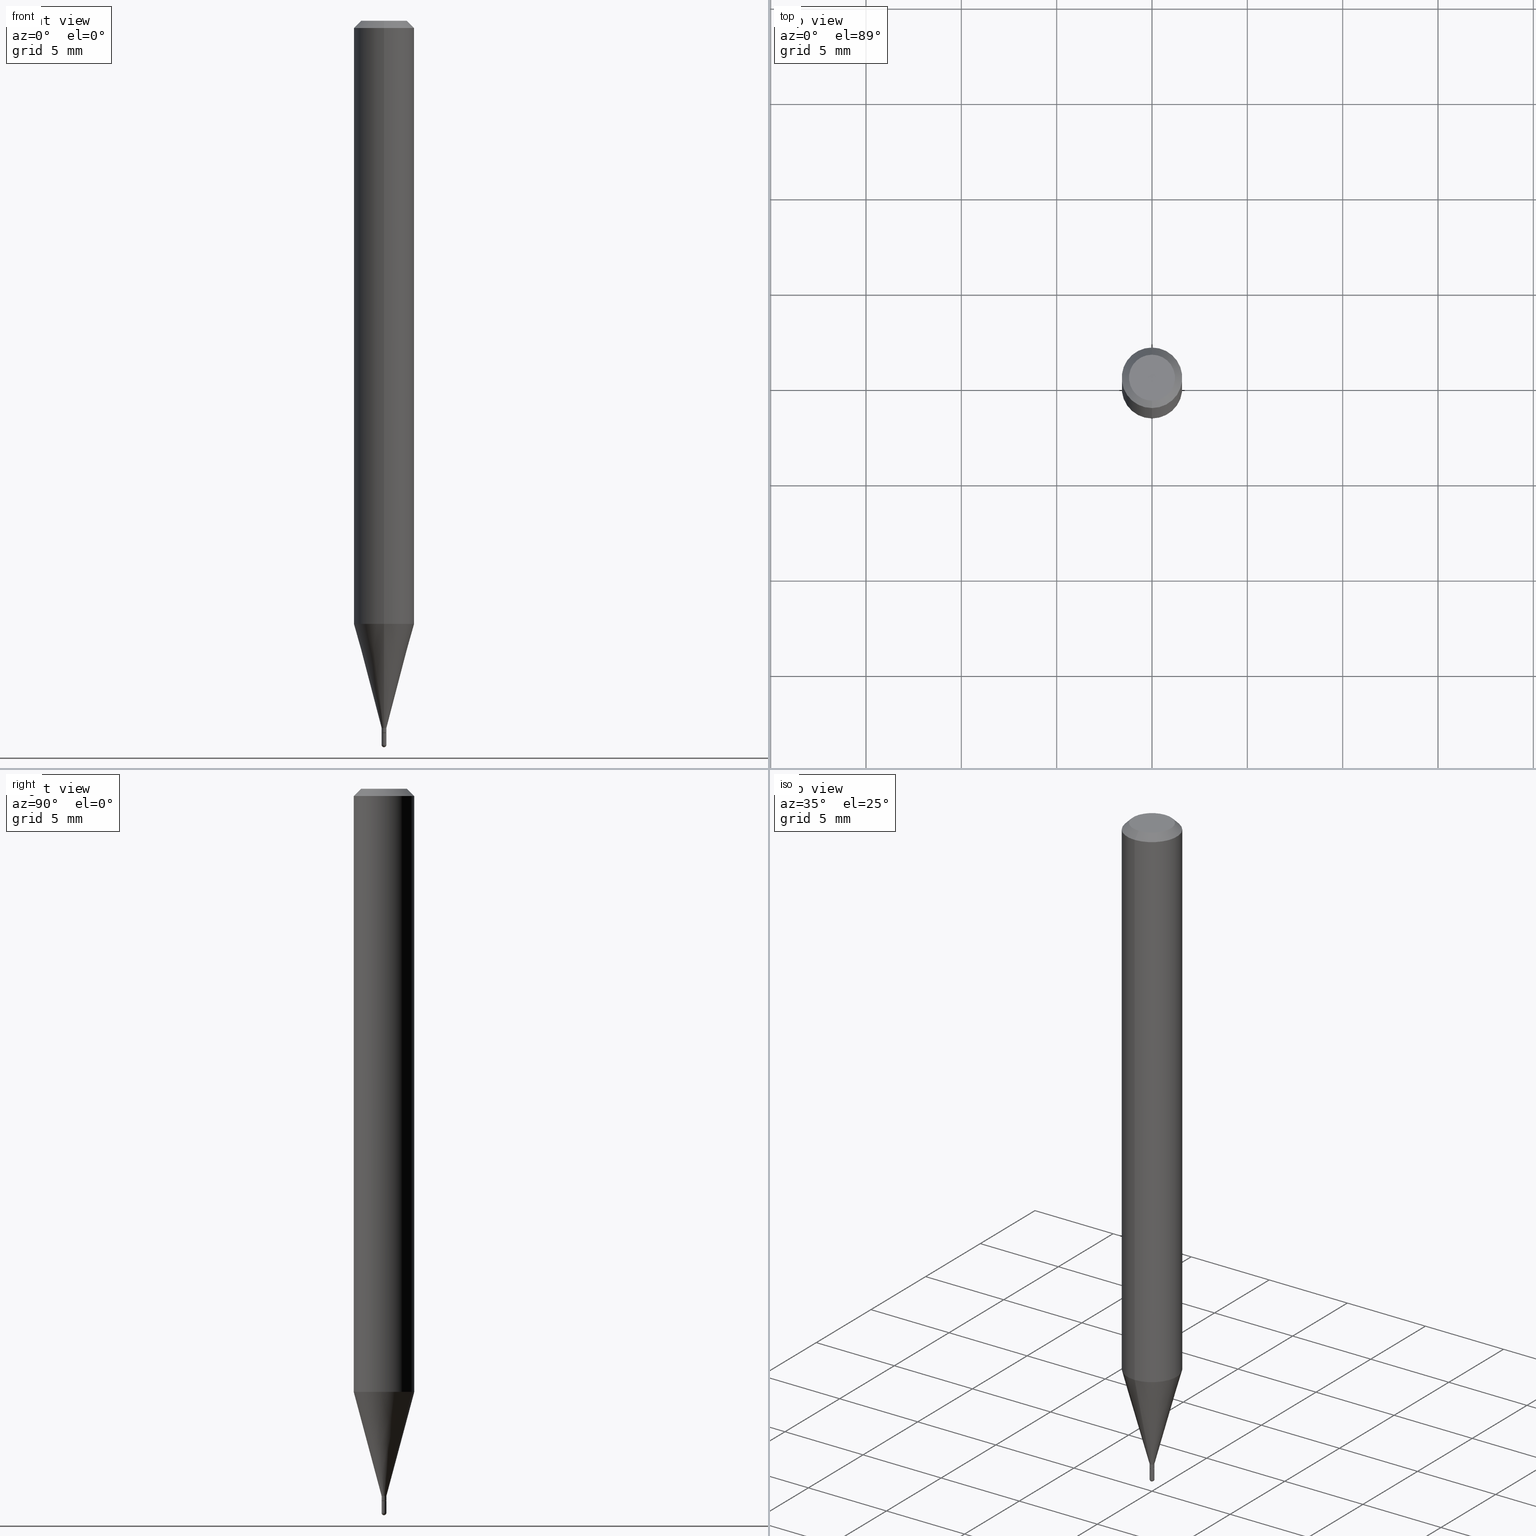
[diagram: canonical four-view strip — front | top / right | iso, engineering-drawing reading convention]
A machine part, canonical four-view strip (front | top / right | iso — engineering-drawing reading convention). The complete STEP part file that produces these views, byte-faithful:
ISO-10303-21;
HEADER;
FILE_DESCRIPTION (( 'STEP AP203' ),
    '1' );
FILE_NAME ('00887.STEP',
    '2024-03-07T18:40:21',
    ( '' ),
    ( '' ),
    'SwSTEP 2.0',
    'SolidWorks 2023',
    '' );
FILE_SCHEMA (( 'CONFIG_CONTROL_DESIGN' ));
ENDSEC;

DATA;
#1 = ORIENTED_EDGE ( 'NONE', *, *, #85, .T. ) ;
#2 = CARTESIAN_POINT ( 'NONE',  ( 3.655548282102189708E-29, -5.220376924970077322E-15, -1.495000000000000107 ) ) ;
#3 = ORIENTED_EDGE ( 'NONE', *, *, #340, .F. ) ;
#4 =( CONVERSION_BASED_UNIT ( 'INCH', #359 ) LENGTH_UNIT ( ) NAMED_UNIT ( #409 ) );
#5 = DIRECTION ( 'NONE',  ( -2.447019908493791641E-29, 3.489260072053890687E-15, 1.000000000000000000 ) ) ;
#6 = VECTOR ( 'NONE', #217, 39.37007874015748143 ) ;
#7 = EDGE_CURVE ( 'NONE', #76, #151, #280, .T. ) ;
#8 = AXIS2_PLACEMENT_3D ( 'NONE', #243, #449, #325 ) ;
#9 = DIRECTION ( 'NONE',  ( -6.982962677686265922E-15, -1.000000000000000000, 0.000000000000000000 ) ) ;
#10 = DIRECTION ( 'NONE',  ( -2.445468806185136597E-29, 3.491481338843145583E-15, 1.000000000000000000 ) ) ;
#11 = FACE_OUTER_BOUND ( 'NONE', #79, .T. ) ;
#12 = ORIENTED_EDGE ( 'NONE', *, *, #214, .F. ) ;
#13 = AXIS2_PLACEMENT_3D ( 'NONE', #408, #451, #372 ) ;
#14 = SECURITY_CLASSIFICATION ( '', '', #414 ) ;
#15 = CARTESIAN_POINT ( 'NONE',  ( 3.670529862740689792E-31, -5.233890108080838965E-17, -0.01500000000000000812 ) ) ;
#16 = CARTESIAN_POINT ( 'NONE',  ( 3.670529862740689792E-31, -5.233890108080838965E-17, -0.01500000000000000812 ) ) ;
#17 = CARTESIAN_POINT ( 'NONE',  ( 4.440892098500625669E-16, 0.06250000000000000000, -2.180787545033681680E-16 ) ) ;
#18 = DATE_TIME_ROLE ( 'creation_date' ) ;
#19 = DIRECTION ( 'NONE',  ( -2.447019908493791641E-29, 3.489260072053890687E-15, 1.000000000000000000 ) ) ;
#20 = APPLICATION_CONTEXT ( 'configuration controlled 3d designs of mechanical parts and assemblies' ) ;
#21 = EDGE_CURVE ( 'NONE', #158, #358, #56, .T. ) ;
#22 = APPROVAL_DATE_TIME ( #33, #370 ) ;
#23 = AXIS2_PLACEMENT_3D ( 'NONE', #95, #19, #256 ) ;
#24 = AXIS2_PLACEMENT_3D ( 'NONE', #378, #417, #59 ) ;
#25 = AXIS2_PLACEMENT_3D ( 'NONE', #205, #282, #241 ) ;
#26 = CARTESIAN_POINT ( 'NONE',  ( 0.000000000000000000, 0.000000000000000000, 0.000000000000000000 ) ) ;
#27 = CARTESIAN_POINT ( 'NONE',  ( 3.375077994864039848E-17, 0.004499999999994864011, -1.470000000000000195 ) ) ;
#28 = PRODUCT_DEFINITION_SHAPE ( 'NONE', 'NONE',  #41 ) ;
#29 = COORDINATED_UNIVERSAL_TIME_OFFSET ( 5, 0, .BEHIND. ) ;
#30 = DIRECTION ( 'NONE',  ( 1.000000000000000000, -6.982962677686336130E-15, 0.000000000000000000 ) ) ;
#31 = EDGE_CURVE ( 'NONE', #268, #158, #478, .T. ) ;
#32 = ORIENTED_EDGE ( 'NONE', *, *, #320, .T. ) ;
#33 = DATE_AND_TIME ( #461, #312 ) ;
#34 = AXIS2_PLACEMENT_3D ( 'NONE', #491, #338, #137 ) ;
#35 = CARTESIAN_POINT ( 'NONE',  ( -3.491481338843075547E-17, -0.004999999999999917705, 1.744630036026916945E-17 ) ) ;
#36 = ORIENTED_EDGE ( 'NONE', *, *, #185, .F. ) ;
#37 = CARTESIAN_POINT ( 'NONE',  ( 4.364351673553919652E-16, 0.06249999999999995143, -0.01500000000000022669 ) ) ;
#38 = ORIENTED_EDGE ( 'NONE', *, *, #292, .T. ) ;
#39 = DIRECTION ( 'NONE',  ( 2.447019908493791641E-29, -3.489260072053890687E-15, -1.000000000000000000 ) ) ;
#40 = ORIENTED_EDGE ( 'NONE', *, *, #135, .F. ) ;
#41 = PRODUCT_DEFINITION ( 'UNKNOWN', '', #337, #452 ) ;
#42 = CARTESIAN_POINT ( 'NONE',  ( 3.655548282102189708E-29, -5.220376924970077322E-15, -1.495000000000000107 ) ) ;
#43 = AXIS2_PLACEMENT_3D ( 'NONE', #250, #52, #212 ) ;
#44 = EDGE_LOOP ( 'NONE', ( #407, #423, #480, #209 ) ) ;
#45 = SPHERICAL_SURFACE ( 'NONE', #126, 0.005000000000000040870 ) ;
#46 = ORIENTED_EDGE ( 'NONE', *, *, #175, .T. ) ;
#47 = ADVANCED_FACE ( 'NONE', ( #129 ), #288, .T. ) ;
#48 = EDGE_LOOP ( 'NONE', ( #114, #38, #40, #431 ) ) ;
#49 = FACE_OUTER_BOUND ( 'NONE', #366, .T. ) ;
#50 = ORIENTED_EDGE ( 'NONE', *, *, #277, .T. ) ;
#51 = VECTOR ( 'NONE', #390, 39.37007874015748143 ) ;
#52 = DIRECTION ( 'NONE',  ( -2.447019908493791641E-29, 3.489260072053890687E-15, 1.000000000000000000 ) ) ;
#53 = ORIENTED_EDGE ( 'NONE', *, *, #426, .T. ) ;
#54 = PRODUCT_RELATED_PRODUCT_CATEGORY ( 'detail', '', ( #80 ) ) ;
#55 = CARTESIAN_POINT ( 'NONE',  ( 0.004999999999999997502, -5.167392381487856456E-15, -1.470000000000000195 ) ) ;
#56 = CIRCLE ( 'NONE', #191, 0.004999999999999997502 ) ;
#57 = VECTOR ( 'NONE', #64, 39.37007874015748143 ) ;
#58 = DIRECTION ( 'NONE',  ( -6.982962677686265133E-15, -1.000000000000000000, 0.000000000000000000 ) ) ;
#59 = DIRECTION ( 'NONE',  ( -6.982962677686265922E-15, -1.000000000000000000, 4.370956789862821150E-15 ) ) ;
#60 = PERSON_AND_ORGANIZATION ( #225, #118 ) ;
#61 = CYLINDRICAL_SURFACE ( 'NONE', #97, 0.004999999999999917705 ) ;
#62 = PERSON_AND_ORGANIZATION ( #225, #118 ) ;
#63 = CIRCLE ( 'NONE', #395, 0.06250000000000000000 ) ;
#64 = DIRECTION ( 'NONE',  ( -2.445468806185136877E-29, 3.491481338843145188E-15, 1.000000000000000000 ) ) ;
#65 = EDGE_CURVE ( 'NONE', #477, #125, #199, .T. ) ;
#66 = LINE ( 'NONE', #430, #470 ) ;
#67 = ORIENTED_EDGE ( 'NONE', *, *, #99, .T. ) ;
#68 = DIRECTION ( 'NONE',  ( -4.937700262164674260E-15, -0.7071067811865632269, 0.7071067811865319186 ) ) ;
#69 = ORIENTED_EDGE ( 'NONE', *, *, #185, .T. ) ;
#70 = CALENDAR_DATE ( 2024, 7, 3 ) ;
#71 = CIRCLE ( 'NONE', #361, 0.004999999999999917705 ) ;
#72 = DIRECTION ( 'NONE',  ( -2.447019908493791641E-29, 3.489260072053890687E-15, 1.000000000000000000 ) ) ;
#73 = AXIS2_PLACEMENT_3D ( 'NONE', #439, #476, #9 ) ;
#74 = ORIENTED_EDGE ( 'NONE', *, *, #214, .T. ) ;
#75 = LINE ( 'NONE', #230, #172 ) ;
#76 = VERTEX_POINT ( 'NONE', #364 ) ;
#77 = ADVANCED_FACE ( 'NONE', ( #11 ), #483, .F. ) ;
#78 = DIRECTION ( 'NONE',  ( 1.839019923739605443E-15, 0.2588190451025256800, 0.9659258262890669799 ) ) ;
#79 = EDGE_LOOP ( 'NONE', ( #352, #36 ) ) ;
#80 = PRODUCT ( '00887', '00887', '', ( #101 ) ) ;
#81 = CARTESIAN_POINT ( 'NONE',  ( 3.595895755531627414E-29, -5.127467675883193777E-15, -1.469500000000000250 ) ) ;
#82 = VECTOR ( 'NONE', #195, 39.37007874015748143 ) ;
#83 = EDGE_LOOP ( 'NONE', ( #393, #50, #440, #464 ) ) ;
#84 = CONICAL_SURFACE ( 'NONE', #192, 0.06250000000000000000, 0.7853981633974483900 ) ;
#85 = EDGE_CURVE ( 'NONE', #310, #89, #444, .T. ) ;
#86 = FACE_OUTER_BOUND ( 'NONE', #44, .T. ) ;
#87 = ORIENTED_EDGE ( 'NONE', *, *, #124, .T. ) ;
#88 = CARTESIAN_POINT ( 'NONE',  ( 3.491481338846802298E-17, 0.004999999999994798536, -1.495000000000000107 ) ) ;
#89 = VERTEX_POINT ( 'NONE', #183 ) ;
#90 = DIRECTION ( 'NONE',  ( -2.447019908493791641E-29, 3.489260072053890687E-15, 1.000000000000000000 ) ) ;
#91 = DIRECTION ( 'NONE',  ( -6.982962677686265922E-15, -1.000000000000000000, 3.489260072053891476E-15 ) ) ;
#92 = VECTOR ( 'NONE', #78, 39.37007874015748143 ) ;
#93 = VERTEX_POINT ( 'NONE', #446 ) ;
#94 = ADVANCED_FACE ( 'NONE', ( #260 ), #61, .T. ) ;
#95 = CARTESIAN_POINT ( 'NONE',  ( 2.193956392945895993E-46, -3.128411180947656791E-32, -8.965829764320701428E-18 ) ) ;
#96 = CARTESIAN_POINT ( 'NONE',  ( 2.193956392945895993E-46, -3.128411180947656791E-32, -8.965829764320701428E-18 ) ) ;
#97 = AXIS2_PLACEMENT_3D ( 'NONE', #496, #179, #335 ) ;
#98 = CARTESIAN_POINT ( 'NONE',  ( -4.364351673553611504E-16, -0.06250000000000434375, -1.245407078564790382 ) ) ;
#99 = EDGE_CURVE ( 'NONE', #89, #310, #410, .T. ) ;
#100 = DIRECTION ( 'NONE',  ( -6.982962677686265922E-15, -1.000000000000000000, 3.489260072053890687E-15 ) ) ;
#101 = MECHANICAL_CONTEXT ( 'NONE', #146, 'mechanical' ) ;
#102 = DIRECTION ( 'NONE',  ( 1.000000000000000000, -6.982962677686336130E-15, 0.000000000000000000 ) ) ;
#103 = APPROVAL_DATE_TIME ( #371, #144 ) ;
#104 = LINE ( 'NONE', #454, #6 ) ;
#105 = COORDINATED_UNIVERSAL_TIME_OFFSET ( 5, 0, .BEHIND. ) ;
#106 = AXIS2_PLACEMENT_3D ( 'NONE', #298, #253, #102 ) ;
#107 = CONICAL_SURFACE ( 'NONE', #73, 0.004999999999999917705, 0.2617993877991510177 ) ;
#108 = DIRECTION ( 'NONE',  ( 1.000000000000000000, -6.982962677686266711E-15, 4.876176775795936914E-29 ) ) ;
#109 = PERSON_AND_ORGANIZATION_ROLE ( 'design_supplier' ) ;
#110 = DIRECTION ( 'NONE',  ( -2.447019908493791641E-29, 3.489260072053890687E-15, 1.000000000000000000 ) ) ;
#111 = EDGE_LOOP ( 'NONE', ( #154, #382, #427, #12, #204 ) ) ;
#112 = APPROVAL_STATUS ( 'not_yet_approved' ) ;
#113 = FACE_OUTER_BOUND ( 'NONE', #290, .T. ) ;
#114 = ORIENTED_EDGE ( 'NONE', *, *, #365, .T. ) ;
#115 = AXIS2_PLACEMENT_3D ( 'NONE', #381, #301, #143 ) ;
#116 = DIRECTION ( 'NONE',  ( -2.445468806185136597E-29, 3.491481338843145583E-15, 1.000000000000000000 ) ) ;
#117 = EDGE_CURVE ( 'NONE', #89, #93, #104, .T. ) ;
#118 = ORGANIZATION ( 'UNSPECIFIED', 'UNSPECIFIED', '' ) ;
#119 = ORIENTED_EDGE ( 'NONE', *, *, #488, .F. ) ;
#120 = DIRECTION ( 'NONE',  ( -6.982962677686265922E-15, -1.000000000000000000, 0.000000000000000000 ) ) ;
#121 = ORIENTED_EDGE ( 'NONE', *, *, #434, .F. ) ;
#122 = FACE_OUTER_BOUND ( 'NONE', #279, .T. ) ;
#123 = ORIENTED_EDGE ( 'NONE', *, *, #99, .F. ) ;
#124 = EDGE_CURVE ( 'NONE', #391, #93, #328, .T. ) ;
#125 = VERTEX_POINT ( 'NONE', #221 ) ;
#126 = AXIS2_PLACEMENT_3D ( 'NONE', #435, #437, #332 ) ;
#127 = ORIENTED_EDGE ( 'NONE', *, *, #169, .F. ) ;
#128 = FACE_OUTER_BOUND ( 'NONE', #469, .T. ) ;
#129 = FACE_OUTER_BOUND ( 'NONE', #244, .T. ) ;
#130 = CC_DESIGN_PERSON_AND_ORGANIZATION_ASSIGNMENT ( #379, #226, ( #80 ) ) ;
#131 = CARTESIAN_POINT ( 'NONE',  ( 3.597119265485873710E-29, -5.129212305919220127E-15, -1.470000000000000195 ) ) ;
#132 = AXIS2_PLACEMENT_3D ( 'NONE', #42, #348, #264 ) ;
#133 = ORIENTED_EDGE ( 'NONE', *, *, #334, .F. ) ;
#134 = CARTESIAN_POINT ( 'NONE',  ( 3.667989417705410188E-29, -5.237528169964506056E-15, -1.500000000000000222 ) ) ;
#135 = EDGE_CURVE ( 'NONE', #510, #171, #249, .T. ) ;
#136 = DIRECTION ( 'NONE',  ( -2.447019908493791641E-29, 3.489260072053890687E-15, 1.000000000000000000 ) ) ;
#137 = DIRECTION ( 'NONE',  ( -6.982962677686265922E-15, -1.000000000000000000, 0.000000000000000000 ) ) ;
#138 = AXIS2_PLACEMENT_3D ( 'NONE', #218, #287, #211 ) ;
#139 = DIRECTION ( 'NONE',  ( -2.447019908493791641E-29, 3.489260072053890687E-15, 1.000000000000000000 ) ) ;
#140 = COORDINATED_UNIVERSAL_TIME_OFFSET ( 5, 0, .BEHIND. ) ;
#141 = CARTESIAN_POINT ( 'NONE',  ( -4.364351673553916201E-16, -0.06250000000000000000, 2.180787545033681680E-16 ) ) ;
#142 = DIRECTION ( 'NONE',  ( 1.000000000000000000, 0.000000000000000000, 0.000000000000000000 ) ) ;
#143 = DIRECTION ( 'NONE',  ( 6.982962677686265922E-15, 1.000000000000000000, -3.489260072053890687E-15 ) ) ;
#144 = APPROVAL ( #424, 'UNSPECIFIED' ) ;
#145 = APPROVAL_ROLE ( '' ) ;
#146 = APPLICATION_CONTEXT ( 'configuration controlled 3d designs of mechanical parts and assemblies' ) ;
#147 = LOCAL_TIME ( 13, 40, 21.00000000000000000, #140 ) ;
#148 = CARTESIAN_POINT ( 'NONE',  ( 0.000000000000000000, 0.000000000000000000, 0.000000000000000000 ) ) ;
#149 = DATE_AND_TIME ( #503, #147 ) ;
#150 = FACE_OUTER_BOUND ( 'NONE', #242, .T. ) ;
#151 = VERTEX_POINT ( 'NONE', #27 ) ;
#152 = CC_DESIGN_PERSON_AND_ORGANIZATION_ASSIGNMENT ( #60, #109, ( #337 ) ) ;
#153 = DIRECTION ( 'NONE',  ( 5.024295867788190974E-15, 0.7071067811865681119, 0.7071067811865270336 ) ) ;
#154 = ORIENTED_EDGE ( 'NONE', *, *, #334, .T. ) ;
#155 = AXIS2_PLACEMENT_3D ( 'NONE', #131, #455, #100 ) ;
#156 = LOCAL_TIME ( 13, 40, 21.00000000000000000, #178 ) ;
#157 = CARTESIAN_POINT ( 'NONE',  ( -3.491481338839502869E-17, -0.005000000000005012588, -1.459999999999999964 ) ) ;
#158 = VERTEX_POINT ( 'NONE', #412 ) ;
#159 = EDGE_CURVE ( 'NONE', #231, #327, #485, .T. ) ;
#160 = ORIENTED_EDGE ( 'NONE', *, *, #65, .T. ) ;
#161 = DIRECTION ( 'NONE',  ( 6.982962677686265922E-15, 1.000000000000000000, 0.000000000000000000 ) ) ;
#162 = ORIENTED_EDGE ( 'NONE', *, *, #277, .F. ) ;
#163 =( NAMED_UNIT ( * ) PLANE_ANGLE_UNIT ( ) SI_UNIT ( $, .RADIAN. ) );
#164 = AXIS2_PLACEMENT_3D ( 'NONE', #405, #443, #91 ) ;
#165 = ORIENTED_EDGE ( 'NONE', *, *, #65, .F. ) ;
#166 = MANIFOLD_SOLID_BREP ( 'Body-Move/Copy2[1]', #484 ) ;
#167 = DIRECTION ( 'NONE',  ( -6.982962677686265922E-15, -1.000000000000000000, 0.000000000000000000 ) ) ;
#168 = CARTESIAN_POINT ( 'NONE',  ( 3.655975865246779122E-29, -5.219764601570503141E-15, -1.495000000000000107 ) ) ;
#169 = EDGE_CURVE ( 'NONE', #268, #327, #413, .T. ) ;
#170 = ORIENTED_EDGE ( 'NONE', *, *, #389, .F. ) ;
#171 = VERTEX_POINT ( 'NONE', #174 ) ;
#172 = VECTOR ( 'NONE', #153, 39.37007874015748143 ) ;
#173 = CIRCLE ( 'NONE', #138, 0.06250000000000000000 ) ;
#174 = CARTESIAN_POINT ( 'NONE',  ( 4.440892098500928887E-16, 0.06249999999999564237, -1.245407078564790826 ) ) ;
#175 = EDGE_CURVE ( 'NONE', #477, #467, #186, .T. ) ;
#176 = DIRECTION ( 'NONE',  ( -2.445468806185136597E-29, 3.491481338843145583E-15, 1.000000000000000000 ) ) ;
#177 = FACE_OUTER_BOUND ( 'NONE', #271, .T. ) ;
#178 = COORDINATED_UNIVERSAL_TIME_OFFSET ( 5, 0, .BEHIND. ) ;
#179 = DIRECTION ( 'NONE',  ( -2.447019908493791641E-29, 3.489260072053890687E-15, 1.000000000000000000 ) ) ;
#180 = CIRCLE ( 'NONE', #386, 0.004999999999999997502 ) ;
#181 = APPROVAL_STATUS ( 'not_yet_approved' ) ;
#182 = CC_DESIGN_APPROVAL ( #194, ( #337 ) ) ;
#183 = CARTESIAN_POINT ( 'NONE',  ( -3.773273898774340269E-16, -0.04749999999999999362, 1.567740236582390800E-16 ) ) ;
#184 = PERSON_AND_ORGANIZATION ( #225, #118 ) ;
#185 = EDGE_CURVE ( 'NONE', #151, #76, #416, .T. ) ;
#186 = LINE ( 'NONE', #258, #216 ) ;
#187 = PERSON_AND_ORGANIZATION_ROLE ( 'creator' ) ;
#188 = CYLINDRICAL_SURFACE ( 'NONE', #375, 0.06250000000000000000 ) ;
#189 = ORIENTED_EDGE ( 'NONE', *, *, #340, .T. ) ;
#190 = DIRECTION ( 'NONE',  ( 0.000000000000000000, 0.000000000000000000, 1.000000000000000000 ) ) ;
#191 = AXIS2_PLACEMENT_3D ( 'NONE', #251, #10, #324 ) ;
#192 = AXIS2_PLACEMENT_3D ( 'NONE', #16, #474, #490 ) ;
#193 = CARTESIAN_POINT ( 'NONE',  ( 0.004999999999999997502, -5.211035898223395623E-15, -1.495000000000000107 ) ) ;
#194 = APPROVAL ( #181, 'UNSPECIFIED' ) ;
#195 = DIRECTION ( 'NONE',  ( 4.937700262164548042E-15, 0.7071067811865451302, -0.7071067811865499042 ) ) ;
#196 = VERTEX_POINT ( 'NONE', #134 ) ;
#197 = LINE ( 'NONE', #37, #82 ) ;
#198 = ORIENTED_EDGE ( 'NONE', *, *, #21, .T. ) ;
#199 = CIRCLE ( 'NONE', #43, 0.004999999999999917705 ) ;
#200 =( GEOMETRIC_REPRESENTATION_CONTEXT ( 3 ) GLOBAL_UNCERTAINTY_ASSIGNED_CONTEXT ( ( #463 ) ) GLOBAL_UNIT_ASSIGNED_CONTEXT ( ( #4, #163, #285 ) ) REPRESENTATION_CONTEXT ( 'NONE', 'WORKASPACE' ) );
#201 = CARTESIAN_POINT ( 'NONE',  ( 3.552713678804014516E-17, 0.004999999999994823689, -1.459999999999999964 ) ) ;
#202 = EDGE_LOOP ( 'NONE', ( #123, #347, #276, #170 ) ) ;
#203 = CARTESIAN_POINT ( 'NONE',  ( 3.594839145092150820E-29, -5.132477568099424807E-15, -1.470000000000000195 ) ) ;
#204 = ORIENTED_EDGE ( 'NONE', *, *, #315, .T. ) ;
#205 = CARTESIAN_POINT ( 'NONE',  ( 3.491481338846726493E-17, 0.004999999999994865323, -1.470000000000000195 ) ) ;
#206 = ORIENTED_EDGE ( 'NONE', *, *, #210, .T. ) ;
#207 = CARTESIAN_POINT ( 'NONE',  ( 3.670529862740689792E-31, -5.233890108080838965E-17, -0.01500000000000000812 ) ) ;
#208 = CONICAL_SURFACE ( 'NONE', #261, 0.004499999999999993588, 0.7853981633974739252 ) ;
#209 = ORIENTED_EDGE ( 'NONE', *, *, #21, .F. ) ;
#210 = EDGE_CURVE ( 'NONE', #171, #391, #368, .T. ) ;
#211 = DIRECTION ( 'NONE',  ( -6.982962677686265922E-15, -1.000000000000000000, 4.370956789862821150E-15 ) ) ;
#212 = DIRECTION ( 'NONE',  ( -6.982962677686265922E-15, -1.000000000000000000, 0.000000000000000000 ) ) ;
#213 = ORIENTED_EDGE ( 'NONE', *, *, #85, .F. ) ;
#214 = EDGE_CURVE ( 'NONE', #358, #231, #219, .T. ) ;
#215 = DIRECTION ( 'NONE',  ( -2.447019908493791641E-29, 3.489260072053890687E-15, 1.000000000000000000 ) ) ;
#216 = VECTOR ( 'NONE', #339, 39.37007874015748143 ) ;
#217 = DIRECTION ( 'NONE',  ( -4.851104656540964275E-15, -0.7071067811865500152, -0.7071067811865450192 ) ) ;
#218 = CARTESIAN_POINT ( 'NONE',  ( 3.047535915427134078E-29, -4.345549192689407403E-15, -1.245407078564790604 ) ) ;
#219 = LINE ( 'NONE', #331, #344 ) ;
#220 = APPROVAL_ROLE ( '' ) ;
#221 = CARTESIAN_POINT ( 'NONE',  ( -3.491481338839491160E-17, -0.005000000000005061160, -1.469500000000000250 ) ) ;
#222 = AXIS2_PLACEMENT_3D ( 'NONE', #203, #176, #323 ) ;
#223 = ADVANCED_FACE ( 'NONE', ( #415 ), #291, .T. ) ;
#224 = DIRECTION ( 'NONE',  ( -6.982962677686265922E-15, -1.000000000000000000, 3.483106191921935554E-15 ) ) ;
#225 = PERSON ( 'UNSPECIFIED', 'UNSPECIFIED', 'UNSPECIFIED', ('UNSPECIFIED'), ('UNSPECIFIED'), ('UNSPECIFIED') ) ;
#226 = PERSON_AND_ORGANIZATION_ROLE ( 'design_owner' ) ;
#227 = DIRECTION ( 'NONE',  ( -2.447019908493791361E-29, 3.489260072053890687E-15, 1.000000000000000000 ) ) ;
#228 = ORIENTED_EDGE ( 'NONE', *, *, #117, .F. ) ;
#229 = PERSON_AND_ORGANIZATION ( #225, #118 ) ;
#230 = CARTESIAN_POINT ( 'NONE',  ( 3.197442310924042993E-17, 0.004499999999994864011, -1.470000000000000195 ) ) ;
#231 = VERTEX_POINT ( 'NONE', #55 ) ;
#232 = AXIS2_PLACEMENT_3D ( 'NONE', #275, #305, #420 ) ;
#233 = LOCAL_TIME ( 13, 40, 21.00000000000000000, #105 ) ;
#234 = CARTESIAN_POINT ( 'NONE',  ( -0.004999999999999997502, -5.140593948046958933E-15, -1.470000000000000195 ) ) ;
#235 = DIRECTION ( 'NONE',  ( -6.982962677686265922E-15, -1.000000000000000000, 3.489260072053890687E-15 ) ) ;
#236 = DIRECTION ( 'NONE',  ( -1.807323732225335267E-15, -0.2588190451025189631, 0.9659258262890687563 ) ) ;
#237 = ORIENTED_EDGE ( 'NONE', *, *, #175, .F. ) ;
#238 = ADVANCED_FACE ( 'NONE', ( #177 ), #489, .T. ) ;
#239 = CONICAL_SURFACE ( 'NONE', #302, 0.06250000000000000000, 0.7853981633974483900 ) ;
#240 = CC_DESIGN_APPROVAL ( #370, ( #41 ) ) ;
#241 = DIRECTION ( 'NONE',  ( -1.000000000000000000, 6.982962677686265922E-15, -4.876176775795935793E-29 ) ) ;
#242 = EDGE_LOOP ( 'NONE', ( #1, #67 ) ) ;
#243 = CARTESIAN_POINT ( 'NONE',  ( 3.655548282102189708E-29, -5.220376924970077322E-15, -1.495000000000000107 ) ) ;
#244 = EDGE_LOOP ( 'NONE', ( #433, #46, #274, #438 ) ) ;
#245 = DIRECTION ( 'NONE',  ( -6.982962677686265133E-15, -1.000000000000000000, 0.000000000000000000 ) ) ;
#246 = CC_DESIGN_PERSON_AND_ORGANIZATION_ASSIGNMENT ( #299, #304, ( #337 ) ) ;
#247 = ORIENTED_EDGE ( 'NONE', *, *, #465, .F. ) ;
#248 = VECTOR ( 'NONE', #376, 39.37007874015748143 ) ;
#249 = CIRCLE ( 'NONE', #24, 0.06250000000000000000 ) ;
#250 = CARTESIAN_POINT ( 'NONE',  ( 3.595895755531627414E-29, -5.127467675883193777E-15, -1.469500000000000250 ) ) ;
#251 = CARTESIAN_POINT ( 'NONE',  ( 3.655975865246779122E-29, -5.219764601570503141E-15, -1.495000000000000107 ) ) ;
#252 = ADVANCED_FACE ( 'NONE', ( #333 ), #255, .T. ) ;
#253 = DIRECTION ( 'NONE',  ( -2.445468806185136597E-29, 3.491481338843145583E-15, 1.000000000000000000 ) ) ;
#254 = CARTESIAN_POINT ( 'NONE',  ( -0.004999999999999997502, 3.552713678800499154E-17, -2.459467545127451822E-31 ) ) ;
#255 = CONICAL_SURFACE ( 'NONE', #34, 0.004999999999999917705, 0.2617993877991510177 ) ;
#256 = DIRECTION ( 'NONE',  ( -6.982962677686266711E-15, -1.000000000000000000, 3.489260072053891082E-15 ) ) ;
#257 = DATE_AND_TIME ( #498, #233 ) ;
#258 = CARTESIAN_POINT ( 'NONE',  ( 3.552713678800441839E-17, 0.004999999999999917705, -1.744630036026916945E-17 ) ) ;
#259 = EDGE_CURVE ( 'NONE', #510, #93, #295, .T. ) ;
#260 = FACE_OUTER_BOUND ( 'NONE', #355, .T. ) ;
#261 = AXIS2_PLACEMENT_3D ( 'NONE', #267, #342, #422 ) ;
#262 = CIRCLE ( 'NONE', #377, 0.004999999999999917705 ) ;
#263 = COORDINATED_UNIVERSAL_TIME_OFFSET ( 5, 0, .BEHIND. ) ;
#264 = DIRECTION ( 'NONE',  ( 6.982962677686265133E-15, 1.000000000000000000, 0.000000000000000000 ) ) ;
#265 = CALENDAR_DATE ( 2024, 7, 3 ) ;
#266 = CC_DESIGN_PERSON_AND_ORGANIZATION_ASSIGNMENT ( #494, #187, ( #41 ) ) ;
#267 = CARTESIAN_POINT ( 'NONE',  ( 3.597119265485873710E-29, -5.129212305919220127E-15, -1.470000000000000195 ) ) ;
#268 = VERTEX_POINT ( 'NONE', #346 ) ;
#269 = DATE_TIME_ROLE ( 'classification_date' ) ;
#270 = CARTESIAN_POINT ( 'NONE',  ( -3.491481338839502869E-17, -0.005000000000005012588, -1.459999999999999964 ) ) ;
#271 = EDGE_LOOP ( 'NONE', ( #308, #53, #398, #473 ) ) ;
#272 = CIRCLE ( 'NONE', #222, 0.004999999999999997502 ) ;
#273 = CARTESIAN_POINT ( 'NONE',  ( 3.572649066400936026E-29, -5.094319705198680506E-15, -1.459999999999999964 ) ) ;
#274 = ORIENTED_EDGE ( 'NONE', *, *, #365, .F. ) ;
#275 = CARTESIAN_POINT ( 'NONE',  ( 3.655975865246779122E-29, -5.219764601570503141E-15, -1.495000000000000107 ) ) ;
#276 = ORIENTED_EDGE ( 'NONE', *, *, #488, .T. ) ;
#277 = EDGE_CURVE ( 'NONE', #467, #317, #394, .T. ) ;
#278 = CARTESIAN_POINT ( 'NONE',  ( 3.597119265485873710E-29, -5.129212305919220127E-15, -1.470000000000000195 ) ) ;
#279 = EDGE_LOOP ( 'NONE', ( #505, #388 ) ) ;
#280 = CIRCLE ( 'NONE', #343, 0.004499999999999993588 ) ;
#281 = AXIS2_PLACEMENT_3D ( 'NONE', #15, #139, #224 ) ;
#282 = DIRECTION ( 'NONE',  ( 2.438088387897960049E-29, -3.491481338843145188E-15, -1.000000000000000000 ) ) ;
#283 = ORIENTED_EDGE ( 'NONE', *, *, #357, .T. ) ;
#284 = EDGE_CURVE ( 'NONE', #196, #507, #321, .T. ) ;
#285 =( NAMED_UNIT ( * ) SI_UNIT ( $, .STERADIAN. ) SOLID_ANGLE_UNIT ( ) );
#286 = EDGE_LOOP ( 'NONE', ( #127, #363, #198, #74, #121 ) ) ;
#287 = DIRECTION ( 'NONE',  ( -2.447019908493791641E-29, 3.489260072053890687E-15, 1.000000000000000000 ) ) ;
#288 = CYLINDRICAL_SURFACE ( 'NONE', #164, 0.004999999999999917705 ) ;
#289 = AXIS2_PLACEMENT_3D ( 'NONE', #278, #316, #245 ) ;
#290 = EDGE_LOOP ( 'NONE', ( #228, #213, #436, #87 ) ) ;
#291 = CYLINDRICAL_SURFACE ( 'NONE', #13, 0.004999999999999997502 ) ;
#292 = EDGE_CURVE ( 'NONE', #467, #171, #504, .T. ) ;
#293 = DIRECTION ( 'NONE',  ( -2.447019908493791641E-29, 3.489260072053890687E-15, 1.000000000000000000 ) ) ;
#294 = SPHERICAL_SURFACE ( 'NONE', #471, 0.005000000000000040870 ) ;
#295 = LINE ( 'NONE', #141, #296 ) ;
#296 = VECTOR ( 'NONE', #227, 39.37007874015748143 ) ;
#297 = ADVANCED_FACE ( 'NONE', ( #354 ), #208, .T. ) ;
#298 = CARTESIAN_POINT ( 'NONE',  ( 3.594839145092150820E-29, -5.132477568099424807E-15, -1.470000000000000195 ) ) ;
#299 = PERSON_AND_ORGANIZATION ( #225, #118 ) ;
#300 = DIRECTION ( 'NONE',  ( -2.447019908493791641E-29, 3.489260072053890687E-15, 1.000000000000000000 ) ) ;
#301 = DIRECTION ( 'NONE',  ( 2.447019908493791361E-29, -3.489260072053890687E-15, -1.000000000000000000 ) ) ;
#302 = AXIS2_PLACEMENT_3D ( 'NONE', #425, #39, #387 ) ;
#303 = ADVANCED_FACE ( 'NONE', ( #150 ), #506, .F. ) ;
#304 = PERSON_AND_ORGANIZATION_ROLE ( 'creator' ) ;
#305 = DIRECTION ( 'NONE',  ( -2.445468806185136597E-29, 3.491481338843145583E-15, 1.000000000000000000 ) ) ;
#306 = CARTESIAN_POINT ( 'NONE',  ( 0.000000000000000000, 0.000000000000000000, 0.000000000000000000 ) ) ;
#307 = CARTESIAN_POINT ( 'NONE',  ( 3.572649066400936026E-29, -5.094319705198680506E-15, -1.459999999999999964 ) ) ;
#308 = ORIENTED_EDGE ( 'NONE', *, *, #210, .F. ) ;
#309 = CARTESIAN_POINT ( 'NONE',  ( 3.840629472727447874E-16, 0.04749999999999999362, -1.747056831868805136E-16 ) ) ;
#310 = VERTEX_POINT ( 'NONE', #309 ) ;
#311 = AXIS2_PLACEMENT_3D ( 'NONE', #273, #392, #120 ) ;
#312 = LOCAL_TIME ( 13, 40, 21.00000000000000000, #29 ) ;
#313 = AXIS2_PLACEMENT_3D ( 'NONE', #306, #190, #142 ) ;
#314 = DIRECTION ( 'NONE',  ( -2.445468806185136597E-29, 3.491481338843145583E-15, 1.000000000000000000 ) ) ;
#315 = EDGE_CURVE ( 'NONE', #358, #507, #180, .T. ) ;
#316 = DIRECTION ( 'NONE',  ( -2.447019908493791641E-29, 3.489260072053890687E-15, 1.000000000000000000 ) ) ;
#317 = VERTEX_POINT ( 'NONE', #270 ) ;
#318 = DIRECTION ( 'NONE',  ( -6.982962677686265922E-15, -1.000000000000000000, 3.483106191921935554E-15 ) ) ;
#319 = ORIENTED_EDGE ( 'NONE', *, *, #284, .F. ) ;
#320 = EDGE_CURVE ( 'NONE', #151, #477, #75, .T. ) ;
#321 = CIRCLE ( 'NONE', #132, 0.005000000000000040870 ) ;
#322 = MANIFOLD_SOLID_BREP ( 'Body-Move/Copy2[2]', #374 ) ;
#323 = DIRECTION ( 'NONE',  ( 1.000000000000000000, -6.982962677686336130E-15, 0.000000000000000000 ) ) ;
#324 = DIRECTION ( 'NONE',  ( 1.000000000000000000, -6.982962677686336130E-15, 0.000000000000000000 ) ) ;
#325 = DIRECTION ( 'NONE',  ( -7.105427357600999492E-15, -1.000000000000000000, 0.000000000000000000 ) ) ;
#326 = DIRECTION ( 'NONE',  ( -2.445468806185136597E-29, 3.491481338843145583E-15, 1.000000000000000000 ) ) ;
#327 = VERTEX_POINT ( 'NONE', #234 ) ;
#328 = CIRCLE ( 'NONE', #281, 0.06250000000000000000 ) ;
#329 = ADVANCED_FACE ( 'NONE', ( #499 ), #468, .T. ) ;
#330 = ORIENTED_EDGE ( 'NONE', *, *, #502, .T. ) ;
#331 = CARTESIAN_POINT ( 'NONE',  ( 0.004999999999999997502, -3.491481338843131630E-17, 2.438088387897967108E-31 ) ) ;
#332 = DIRECTION ( 'NONE',  ( 6.982962677686265922E-15, 1.000000000000000000, 0.000000000000000000 ) ) ;
#333 = FACE_OUTER_BOUND ( 'NONE', #83, .T. ) ;
#334 = EDGE_CURVE ( 'NONE', #507, #268, #458, .T. ) ;
#335 = DIRECTION ( 'NONE',  ( -6.982962677686265922E-15, -1.000000000000000000, 3.489260072053891476E-15 ) ) ;
#336 = AXIS2_PLACEMENT_3D ( 'NONE', #168, #326, #482 ) ;
#337 = PRODUCT_DEFINITION_FORMATION_WITH_SPECIFIED_SOURCE ( 'ANY', '', #80, .NOT_KNOWN. ) ;
#338 = DIRECTION ( 'NONE',  ( -2.447019908493791641E-29, 3.489260072053890687E-15, 1.000000000000000000 ) ) ;
#339 = DIRECTION ( 'NONE',  ( -2.447019908493791361E-29, 3.489260072053890687E-15, 1.000000000000000000 ) ) ;
#340 = EDGE_CURVE ( 'NONE', #76, #125, #66, .T. ) ;
#341 = APPROVAL_DATE_TIME ( #419, #194 ) ;
#342 = DIRECTION ( 'NONE',  ( -2.447019908493791641E-29, 3.489260072053890687E-15, 1.000000000000000000 ) ) ;
#343 = AXIS2_PLACEMENT_3D ( 'NONE', #399, #5, #401 ) ;
#344 = VECTOR ( 'NONE', #497, 39.37007874015748143 ) ;
#345 = PERSON_AND_ORGANIZATION ( #225, #118 ) ;
#346 = CARTESIAN_POINT ( 'NONE',  ( -0.004999999999999997502, -5.140593948046958933E-15, -1.495000000000000107 ) ) ;
#347 = ORIENTED_EDGE ( 'NONE', *, *, #117, .T. ) ;
#348 = DIRECTION ( 'NONE',  ( 1.000000000000000000, -6.982962677686265922E-15, 4.883557194083112340E-29 ) ) ;
#349 = EDGE_LOOP ( 'NONE', ( #475, #69, #189, #165 ) ) ;
#350 = ADVANCED_FACE ( 'NONE', ( #432 ), #188, .T. ) ;
#351 = CARTESIAN_POINT ( 'NONE',  ( 4.440892098500932831E-16, 0.06249999999999995143, -0.01500000000000022669 ) ) ;
#352 = ORIENTED_EDGE ( 'NONE', *, *, #7, .F. ) ;
#353 = AXIS2_PLACEMENT_3D ( 'NONE', #459, #116, #108 ) ;
#354 = FACE_OUTER_BOUND ( 'NONE', #349, .T. ) ;
#355 = EDGE_LOOP ( 'NONE', ( #237, #160, #283, #162 ) ) ;
#356 = CARTESIAN_POINT ( 'NONE',  ( 2.398081733190667635E-16, 0.004999999999994823689, -1.459999999999999964 ) ) ;
#357 = EDGE_CURVE ( 'NONE', #125, #317, #462, .T. ) ;
#358 = VERTEX_POINT ( 'NONE', #193 ) ;
#359 = LENGTH_MEASURE_WITH_UNIT ( LENGTH_MEASURE( 0.02539999999999999897 ), #400 );
#360 = EDGE_LOOP ( 'NONE', ( #445, #206, #119, #487 ) ) ;
#361 = AXIS2_PLACEMENT_3D ( 'NONE', #307, #110, #466 ) ;
#362 = DIRECTION ( 'NONE',  ( -1.000000000000000000, 6.982962677686265922E-15, -4.883557194083113462E-29 ) ) ;
#363 = ORIENTED_EDGE ( 'NONE', *, *, #31, .T. ) ;
#364 = CARTESIAN_POINT ( 'NONE',  ( -3.142333204955217563E-17, -0.004500000000005122298, -1.470000000000000195 ) ) ;
#365 = EDGE_CURVE ( 'NONE', #317, #467, #71, .T. ) ;
#366 = EDGE_LOOP ( 'NONE', ( #319, #330, #385, #133 ) ) ;
#367 = APPROVAL_PERSON_ORGANIZATION ( #184, #194, #145 ) ;
#368 = LINE ( 'NONE', #17, #248 ) ;
#369 = CARTESIAN_POINT ( 'NONE',  ( 3.597119265485873710E-29, -5.129212305919220127E-15, -1.470000000000000195 ) ) ;
#370 = APPROVAL ( #112, 'UNSPECIFIED' ) ;
#371 = DATE_AND_TIME ( #70, #156 ) ;
#372 = DIRECTION ( 'NONE',  ( 1.000000000000000000, -6.982962677686266711E-15, 4.876176775795936914E-29 ) ) ;
#373 = SHAPE_DEFINITION_REPRESENTATION ( #28, #493 ) ;
#374 = CLOSED_SHELL ( 'NONE', ( #47, #411, #406, #350, #495, #252, #238, #380, #303, #77, #297, #94 ) ) ;
#375 = AXIS2_PLACEMENT_3D ( 'NONE', #148, #72, #235 ) ;
#376 = DIRECTION ( 'NONE',  ( -2.447019908493791361E-29, 3.489260072053890687E-15, 1.000000000000000000 ) ) ;
#377 = AXIS2_PLACEMENT_3D ( 'NONE', #81, #136, #167 ) ;
#378 = CARTESIAN_POINT ( 'NONE',  ( 3.047535915427134078E-29, -4.345549192689407403E-15, -1.245407078564790604 ) ) ;
#379 = PERSON_AND_ORGANIZATION ( #225, #118 ) ;
#380 = ADVANCED_FACE ( 'NONE', ( #113 ), #239, .T. ) ;
#381 = CARTESIAN_POINT ( 'NONE',  ( 3.316907271900976096E-16, 0.04749999999999999362, -1.702227683047201675E-16 ) ) ;
#382 = ORIENTED_EDGE ( 'NONE', *, *, #169, .T. ) ;
#383 = PERSON_AND_ORGANIZATION_ROLE ( 'classification_officer' ) ;
#384 = CARTESIAN_POINT ( 'NONE',  ( 3.655975865246779122E-29, -5.219764601570503141E-15, -1.495000000000000107 ) ) ;
#385 = ORIENTED_EDGE ( 'NONE', *, *, #31, .F. ) ;
#386 = AXIS2_PLACEMENT_3D ( 'NONE', #384, #314, #30 ) ;
#387 = DIRECTION ( 'NONE',  ( 6.982962677686265922E-15, 1.000000000000000000, -3.483106191921935554E-15 ) ) ;
#388 = ORIENTED_EDGE ( 'NONE', *, *, #434, .T. ) ;
#389 = EDGE_CURVE ( 'NONE', #310, #391, #197, .T. ) ;
#390 = DIRECTION ( 'NONE',  ( -2.447019908493791361E-29, 3.489260072053890687E-15, 1.000000000000000000 ) ) ;
#391 = VERTEX_POINT ( 'NONE', #351 ) ;
#392 = DIRECTION ( 'NONE',  ( -2.447019908493791641E-29, 3.489260072053890687E-15, 1.000000000000000000 ) ) ;
#393 = ORIENTED_EDGE ( 'NONE', *, *, #292, .F. ) ;
#394 = CIRCLE ( 'NONE', #311, 0.004999999999999917705 ) ;
#395 = AXIS2_PLACEMENT_3D ( 'NONE', #207, #90, #318 ) ;
#396 = EDGE_CURVE ( 'NONE', #317, #510, #508, .T. ) ;
#397 = PLANE ( 'NONE',  #25 ) ;
#398 = ORIENTED_EDGE ( 'NONE', *, *, #259, .T. ) ;
#399 = CARTESIAN_POINT ( 'NONE',  ( 3.597119265485873710E-29, -5.129212305919220127E-15, -1.470000000000000195 ) ) ;
#400 =( LENGTH_UNIT ( ) NAMED_UNIT ( * ) SI_UNIT ( $, .METRE. ) );
#401 = DIRECTION ( 'NONE',  ( -6.982962677686265133E-15, -1.000000000000000000, 0.000000000000000000 ) ) ;
#402 = VECTOR ( 'NONE', #236, 39.37007874015748854 ) ;
#403 = CONICAL_SURFACE ( 'NONE', #289, 0.004499999999999993588, 0.7853981633974739252 ) ;
#404 = FACE_OUTER_BOUND ( 'NONE', #48, .T. ) ;
#405 = CARTESIAN_POINT ( 'NONE',  ( 0.000000000000000000, 0.000000000000000000, 0.000000000000000000 ) ) ;
#406 = ADVANCED_FACE ( 'NONE', ( #472 ), #84, .T. ) ;
#407 = ORIENTED_EDGE ( 'NONE', *, *, #502, .F. ) ;
#408 = CARTESIAN_POINT ( 'NONE',  ( 0.000000000000000000, 0.000000000000000000, 0.000000000000000000 ) ) ;
#409 = DIMENSIONAL_EXPONENTS ( 1.000000000000000000, 0.000000000000000000, 0.000000000000000000, 0.000000000000000000, 0.000000000000000000, 0.000000000000000000, 0.000000000000000000 ) ;
#410 = CIRCLE ( 'NONE', #509, 0.04749999999999999362 ) ;
#411 = ADVANCED_FACE ( 'NONE', ( #128 ), #403, .T. ) ;
#412 = CARTESIAN_POINT ( 'NONE',  ( -3.552713678796858068E-17, -0.005000000000005239836, -1.495000000000000107 ) ) ;
#413 = LINE ( 'NONE', #254, #57 ) ;
#414 = SECURITY_CLASSIFICATION_LEVEL ( 'unclassified' ) ;
#415 = FACE_OUTER_BOUND ( 'NONE', #286, .T. ) ;
#416 = CIRCLE ( 'NONE', #450, 0.004499999999999993588 ) ;
#417 = DIRECTION ( 'NONE',  ( -2.447019908493791641E-29, 3.489260072053890687E-15, 1.000000000000000000 ) ) ;
#418 = CC_DESIGN_DATE_AND_TIME_ASSIGNMENT ( #149, #269, ( #14 ) ) ;
#419 = DATE_AND_TIME ( #265, #429 ) ;
#420 = DIRECTION ( 'NONE',  ( 1.000000000000000000, -6.982962677686336130E-15, 0.000000000000000000 ) ) ;
#421 = APPLICATION_PROTOCOL_DEFINITION ( 'international standard', 'config_control_design', 1994, #146 ) ;
#422 = DIRECTION ( 'NONE',  ( -6.982962677686265133E-15, -1.000000000000000000, 0.000000000000000000 ) ) ;
#423 = ORIENTED_EDGE ( 'NONE', *, *, #284, .T. ) ;
#424 = APPROVAL_STATUS ( 'not_yet_approved' ) ;
#425 = CARTESIAN_POINT ( 'NONE',  ( 3.670529862740689792E-31, -5.233890108080838965E-17, -0.01500000000000000812 ) ) ;
#426 = EDGE_CURVE ( 'NONE', #171, #510, #173, .T. ) ;
#427 = ORIENTED_EDGE ( 'NONE', *, *, #159, .F. ) ;
#428 = AXIS2_PLACEMENT_3D ( 'NONE', #26, #215, #448 ) ;
#429 = LOCAL_TIME ( 13, 40, 21.00000000000000000, #263 ) ;
#430 = CARTESIAN_POINT ( 'NONE',  ( -3.142333204955217563E-17, -0.004500000000005122298, -1.470000000000000195 ) ) ;
#431 = ORIENTED_EDGE ( 'NONE', *, *, #396, .F. ) ;
#432 = FACE_OUTER_BOUND ( 'NONE', #360, .T. ) ;
#433 = ORIENTED_EDGE ( 'NONE', *, *, #465, .T. ) ;
#434 = EDGE_CURVE ( 'NONE', #327, #231, #272, .T. ) ;
#435 = CARTESIAN_POINT ( 'NONE',  ( 3.655548282102189708E-29, -5.220376924970077322E-15, -1.495000000000000107 ) ) ;
#436 = ORIENTED_EDGE ( 'NONE', *, *, #389, .T. ) ;
#437 = DIRECTION ( 'NONE',  ( -1.000000000000000000, 6.982962677686265922E-15, -4.883557194083113462E-29 ) ) ;
#438 = ORIENTED_EDGE ( 'NONE', *, *, #357, .F. ) ;
#439 = CARTESIAN_POINT ( 'NONE',  ( 3.572649066400936026E-29, -5.094319705198680506E-15, -1.459999999999999964 ) ) ;
#440 = ORIENTED_EDGE ( 'NONE', *, *, #396, .T. ) ;
#441 = CARTESIAN_POINT ( 'NONE',  ( 3.552713678804026842E-17, 0.004999999999994774250, -1.469500000000000250 ) ) ;
#442 = ADVANCED_FACE ( 'NONE', ( #122 ), #397, .F. ) ;
#443 = DIRECTION ( 'NONE',  ( -2.447019908493791641E-29, 3.489260072053890687E-15, 1.000000000000000000 ) ) ;
#444 = CIRCLE ( 'NONE', #23, 0.04749999999999999362 ) ;
#445 = ORIENTED_EDGE ( 'NONE', *, *, #135, .T. ) ;
#446 = CARTESIAN_POINT ( 'NONE',  ( -4.364351673553912750E-16, -0.06250000000000005551, -0.01499999999999979128 ) ) ;
#447 = ADVANCED_FACE ( 'NONE', ( #86 ), #45, .T. ) ;
#448 = DIRECTION ( 'NONE',  ( -6.982962677686265922E-15, -1.000000000000000000, 3.489260072053890687E-15 ) ) ;
#449 = DIRECTION ( 'NONE',  ( -1.000000000000000000, 7.105427357601001070E-15, -4.926315508542082329E-29 ) ) ;
#450 = AXIS2_PLACEMENT_3D ( 'NONE', #369, #293, #58 ) ;
#451 = DIRECTION ( 'NONE',  ( -2.445468806185136597E-29, 3.491481338843145583E-15, 1.000000000000000000 ) ) ;
#452 = DESIGN_CONTEXT ( 'detailed design', #20, 'design' ) ;
#453 = APPROVAL_ROLE ( '' ) ;
#454 = CARTESIAN_POINT ( 'NONE',  ( -4.287811248607203282E-16, -0.06250000000000005551, -0.01499999999999979128 ) ) ;
#455 = DIRECTION ( 'NONE',  ( -2.447019908493791361E-29, 3.489260072053890687E-15, 1.000000000000000000 ) ) ;
#456 = CC_DESIGN_DATE_AND_TIME_ASSIGNMENT ( #257, #18, ( #41 ) ) ;
#457 = APPLICATION_PROTOCOL_DEFINITION ( 'international standard', 'config_control_design', 1994, #20 ) ;
#458 = CIRCLE ( 'NONE', #232, 0.004999999999999997502 ) ;
#459 = CARTESIAN_POINT ( 'NONE',  ( 0.000000000000000000, 0.000000000000000000, 0.000000000000000000 ) ) ;
#460 = APPROVAL_PERSON_ORGANIZATION ( #345, #370, #453 ) ;
#461 = CALENDAR_DATE ( 2024, 7, 3 ) ;
#462 = LINE ( 'NONE', #35, #51 ) ;
#463 = UNCERTAINTY_MEASURE_WITH_UNIT (LENGTH_MEASURE( 1.000000000000000082E-05 ), #4, 'distance_accuracy_value', 'NONE');
#464 = ORIENTED_EDGE ( 'NONE', *, *, #426, .F. ) ;
#465 = EDGE_CURVE ( 'NONE', #125, #477, #262, .T. ) ;
#466 = DIRECTION ( 'NONE',  ( -6.982962677686265922E-15, -1.000000000000000000, 0.000000000000000000 ) ) ;
#467 = VERTEX_POINT ( 'NONE', #356 ) ;
#468 = CYLINDRICAL_SURFACE ( 'NONE', #353, 0.004999999999999997502 ) ;
#469 = EDGE_LOOP ( 'NONE', ( #501, #32, #247, #3 ) ) ;
#470 = VECTOR ( 'NONE', #68, 39.37007874015748143 ) ;
#471 = AXIS2_PLACEMENT_3D ( 'NONE', #2, #362, #161 ) ;
#472 = FACE_OUTER_BOUND ( 'NONE', #202, .T. ) ;
#473 = ORIENTED_EDGE ( 'NONE', *, *, #124, .F. ) ;
#474 = DIRECTION ( 'NONE',  ( 2.447019908493791641E-29, -3.489260072053890687E-15, -1.000000000000000000 ) ) ;
#475 = ORIENTED_EDGE ( 'NONE', *, *, #320, .F. ) ;
#476 = DIRECTION ( 'NONE',  ( -2.447019908493791641E-29, 3.489260072053890687E-15, 1.000000000000000000 ) ) ;
#477 = VERTEX_POINT ( 'NONE', #441 ) ;
#478 = CIRCLE ( 'NONE', #336, 0.004999999999999997502 ) ;
#479 = CC_DESIGN_SECURITY_CLASSIFICATION ( #14, ( #337 ) ) ;
#480 = ORIENTED_EDGE ( 'NONE', *, *, #315, .F. ) ;
#481 = ADVANCED_FACE ( 'NONE', ( #49 ), #294, .T. ) ;
#482 = DIRECTION ( 'NONE',  ( 1.000000000000000000, -6.982962677686336130E-15, 0.000000000000000000 ) ) ;
#483 = PLANE ( 'NONE',  #155 ) ;
#484 = CLOSED_SHELL ( 'NONE', ( #329, #481, #442, #447, #223 ) ) ;
#485 = CIRCLE ( 'NONE', #106, 0.004999999999999997502 ) ;
#486 = CIRCLE ( 'NONE', #8, 0.005000000000000040870 ) ;
#487 = ORIENTED_EDGE ( 'NONE', *, *, #259, .F. ) ;
#488 = EDGE_CURVE ( 'NONE', #93, #391, #63, .T. ) ;
#489 = CYLINDRICAL_SURFACE ( 'NONE', #428, 0.06250000000000000000 ) ;
#490 = DIRECTION ( 'NONE',  ( 6.982962677686265922E-15, 1.000000000000000000, -3.483106191921935554E-15 ) ) ;
#491 = CARTESIAN_POINT ( 'NONE',  ( 3.572649066400936026E-29, -5.094319705198680506E-15, -1.459999999999999964 ) ) ;
#492 = DIRECTION ( 'NONE',  ( -6.982962677686266711E-15, -1.000000000000000000, 3.489260072053891082E-15 ) ) ;
#493 = ADVANCED_BREP_SHAPE_REPRESENTATION ( '00887', ( #166, #322, #313 ), #200 ) ;
#494 = PERSON_AND_ORGANIZATION ( #225, #118 ) ;
#495 = ADVANCED_FACE ( 'NONE', ( #404 ), #107, .T. ) ;
#496 = CARTESIAN_POINT ( 'NONE',  ( 0.000000000000000000, 0.000000000000000000, 0.000000000000000000 ) ) ;
#497 = DIRECTION ( 'NONE',  ( -2.445468806185136877E-29, 3.491481338843145188E-15, 1.000000000000000000 ) ) ;
#498 = CALENDAR_DATE ( 2024, 7, 3 ) ;
#499 = FACE_OUTER_BOUND ( 'NONE', #111, .T. ) ;
#500 = CC_DESIGN_APPROVAL ( #144, ( #14 ) ) ;
#501 = ORIENTED_EDGE ( 'NONE', *, *, #7, .T. ) ;
#502 = EDGE_CURVE ( 'NONE', #196, #158, #486, .T. ) ;
#503 = CALENDAR_DATE ( 2024, 7, 3 ) ;
#504 = LINE ( 'NONE', #201, #92 ) ;
#505 = ORIENTED_EDGE ( 'NONE', *, *, #159, .T. ) ;
#506 = PLANE ( 'NONE',  #115 ) ;
#507 = VERTEX_POINT ( 'NONE', #88 ) ;
#508 = LINE ( 'NONE', #157, #402 ) ;
#509 = AXIS2_PLACEMENT_3D ( 'NONE', #96, #300, #492 ) ;
#510 = VERTEX_POINT ( 'NONE', #98 ) ;
#511 = APPROVAL_PERSON_ORGANIZATION ( #62, #144, #220 ) ;
#512 = CC_DESIGN_PERSON_AND_ORGANIZATION_ASSIGNMENT ( #229, #383, ( #14 ) ) ;
ENDSEC;
END-ISO-10303-21;
